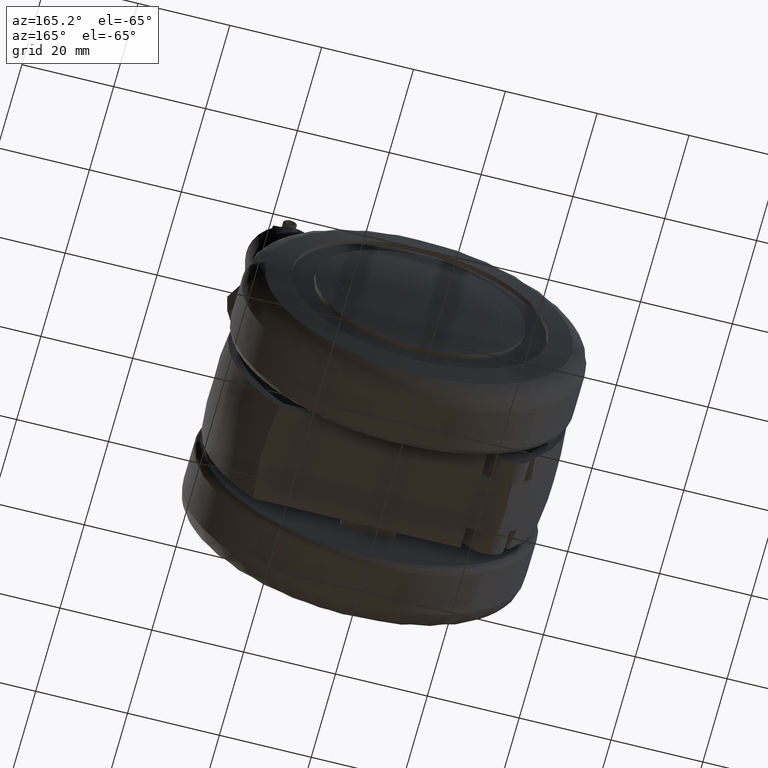
[diagram: clean part render]
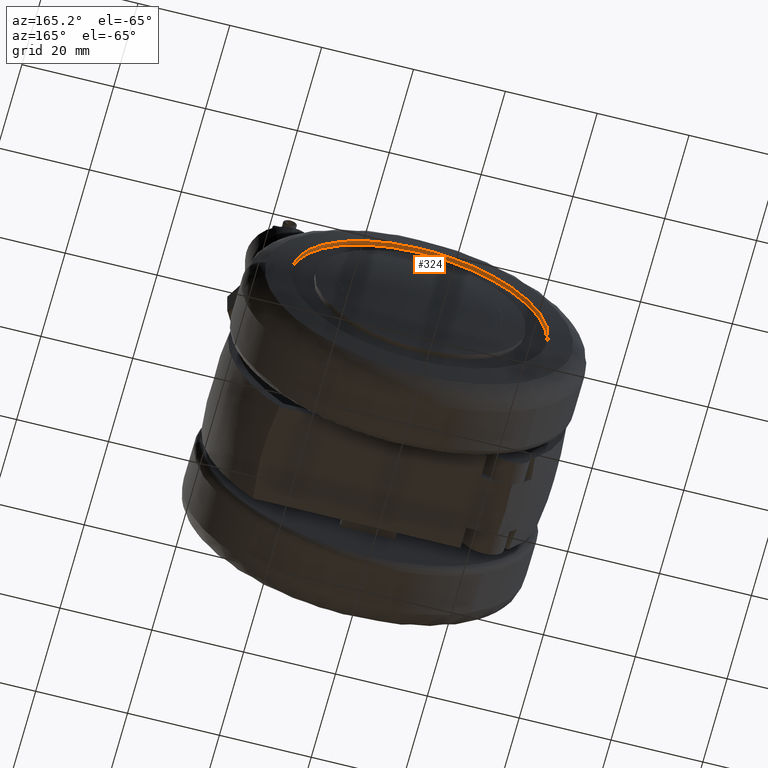
[diagram: same view with one face highlighted and labeled with its STEP entity id]
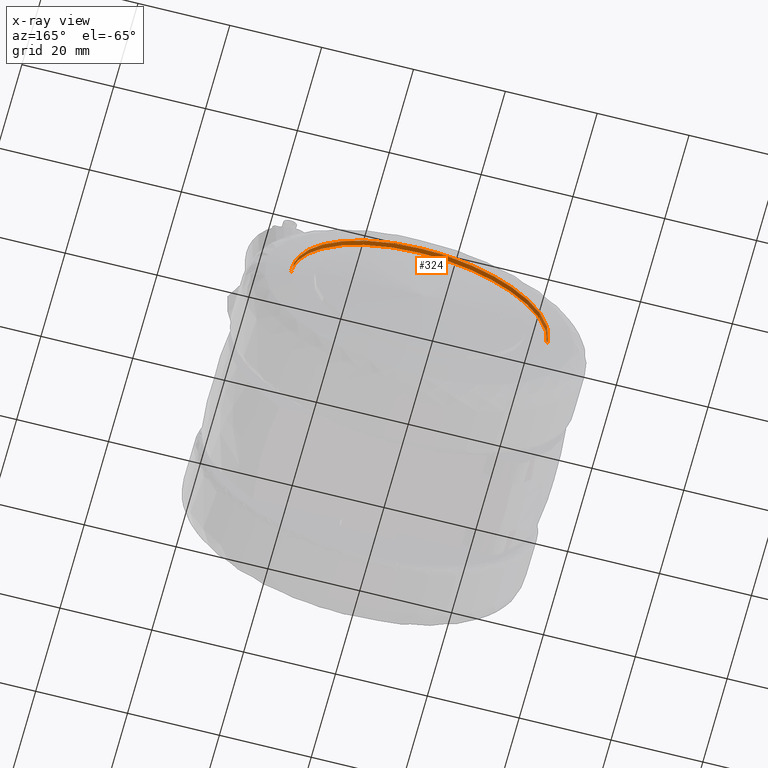
[diagram: x-ray of the same camera — body ghosted, the highlighted face saturated]
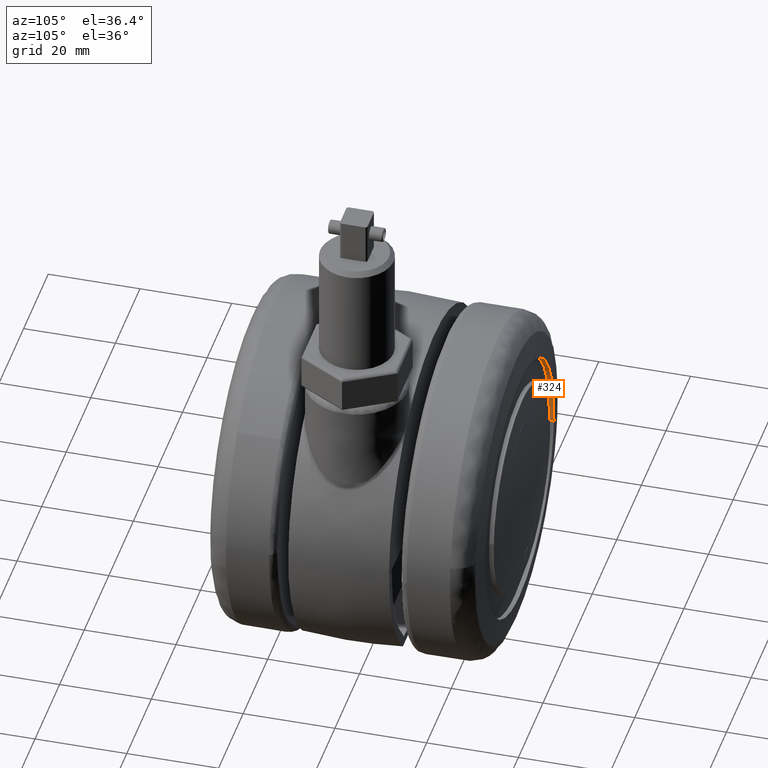
[diagram: same view with one face highlighted and labeled with its STEP entity id]
A machine part, auxiliary view. The second image highlights one B-rep face of the part: STEP entity #324.
The next image is the same camera in x-ray: the body ghosted, the highlighted face saturated — about 0% of this face is hidden behind the body in this view.
A second angle (auxiliary view) of the same face is appended — the face is thin or edge-on in the first view.
In plain terms, the highlighted face is a freeform B-spline surface patch.
Its self-contained STEP definition (entity closure, byte-faithful):
#226=CARTESIAN_POINT('',(27.913685344527568,29.579578599639131,2.196854680379675));
#227=CARTESIAN_POINT('',(25.716830664147892,29.579578599639127,30.110540024907248));
#228=CARTESIAN_POINT('',(-2.196854680379675,29.579578599639120,27.913685344527568));
#229=CARTESIAN_POINT('',(-30.110540024907248,29.579578599639127,25.716830664147892));
#230=CARTESIAN_POINT('',(-27.913685344527568,29.579578599639131,-2.196854680379675));
#231=CARTESIAN_POINT('',(27.913685344527568,28.522274459012390,2.196854680379675));
#232=CARTESIAN_POINT('',(25.716830664147892,28.522274459012380,30.110540024907248));
#233=CARTESIAN_POINT('',(-2.196854680379675,28.522274459012380,27.913685344527568));
#234=CARTESIAN_POINT('',(-30.110540024907248,28.522274459012380,25.716830664147892));
#235=CARTESIAN_POINT('',(-27.913685344527568,28.522274459012390,-2.196854680379675));
#243=(BOUNDED_SURFACE()B_SPLINE_SURFACE(2,1,((#226,#231),(#227,#232),(#228,#233),(#229,#234),(#230,#235)),.UNSPECIFIED.,.F.,.F.,.U.)B_SPLINE_SURFACE_WITH_KNOTS((3,2,3),(2,2),(0.0,46.391918985786631,92.783837971573263),(0.0,1.0),.UNSPECIFIED.)GEOMETRIC_REPRESENTATION_ITEM()RATIONAL_B_SPLINE_SURFACE(((1.0,1.0),(0.707106781186548,0.707106781186548),(1.0,1.0),(0.707106781186548,0.707106781186548),(1.0,1.0)))REPRESENTATION_ITEM('')SURFACE());
#244=CARTESIAN_POINT('',(0.0,29.554419667084051,28.000000000000011));
#245=VERTEX_POINT('',#244);
#246=CARTESIAN_POINT('',(27.913686462384501,29.554419667082389,2.196840476568322));
#247=VERTEX_POINT('',#246);
#248=CARTESIAN_POINT('',(0.0,29.554419667084051,28.000000000000011));
#249=CARTESIAN_POINT('',(25.882946977626393,29.554419667084062,28.000000000000014));
#250=CARTESIAN_POINT('',(27.913686462384497,29.554419667082389,2.196840476568322));
#258=(BOUNDED_CURVE()B_SPLINE_CURVE(2,(#248,#249,#250),.UNSPECIFIED.,.F.,.U.)B_SPLINE_CURVE_WITH_KNOTS((3,3),(0.0,0.236331387861709),.UNSPECIFIED.)CURVE()GEOMETRIC_REPRESENTATION_ITEM()RATIONAL_B_SPLINE_CURVE((1.0,0.723120556410134,0.969723538212035))REPRESENTATION_ITEM(''));
#259=EDGE_CURVE('',#245,#247,#258,.T.);
#260=ORIENTED_EDGE('',*,*,#259,.T.);
#261=CARTESIAN_POINT('',(27.913686448932051,28.548062364881350,2.196840647500092));
#262=VERTEX_POINT('',#261);
#263=CARTESIAN_POINT('',(27.913686462384501,29.554419667082389,2.196840476568322));
#264=CARTESIAN_POINT('',(27.913686448932051,28.548062364881350,2.196840647500092));
#265=QUASI_UNIFORM_CURVE('',1,(#263,#264),.UNSPECIFIED.,.F.,.U.);
#266=EDGE_CURVE('',#247,#262,#265,.T.);
#267=ORIENTED_EDGE('',*,*,#266,.T.);
#268=CARTESIAN_POINT('',(0.0,28.548062364881350,28.000000000000011));
#269=VERTEX_POINT('',#268);
#270=CARTESIAN_POINT('',(0.0,28.548062364881350,28.000000000000011));
#271=CARTESIAN_POINT('',(25.882946818639937,28.548062364881350,28.000000000000021));
#272=CARTESIAN_POINT('',(27.913686448932054,28.548062364881353,2.196840647500091));
#280=(BOUNDED_CURVE()B_SPLINE_CURVE(2,(#270,#271,#272),.UNSPECIFIED.,.F.,.U.)B_SPLINE_CURVE_WITH_KNOTS((3,3),(0.0,0.236331386811977),.UNSPECIFIED.)CURVE()GEOMETRIC_REPRESENTATION_ITEM()RATIONAL_B_SPLINE_CURVE((1.0,0.723120557639972,0.969723536021322))REPRESENTATION_ITEM(''));
#281=EDGE_CURVE('',#269,#262,#280,.T.);
#282=ORIENTED_EDGE('',*,*,#281,.F.);
#283=CARTESIAN_POINT('',(-27.913686448932051,28.548062364881350,-2.196840647500101));
#284=VERTEX_POINT('',#283);
#285=CARTESIAN_POINT('',(-27.913686448932054,28.548062364881346,-2.196840647500101));
#286=CARTESIAN_POINT('',(-27.999999999999993,28.548062364881346,-1.100115947214234));
#287=CARTESIAN_POINT('',(-28.0,28.548062364881350,1.048804E-014));
#288=CARTESIAN_POINT('',(-28.000000000000004,28.548062364881353,28.000000000000018));
#289=CARTESIAN_POINT('',(0.0,28.548062364881350,28.000000000000011));
#297=(BOUNDED_CURVE()B_SPLINE_CURVE(2,(#285,#286,#287,#288,#289),.UNSPECIFIED.,.F.,.U.)B_SPLINE_CURVE_WITH_KNOTS((3,2,3),(0.736331386811977,0.750000000000000,1.0),.UNSPECIFIED.)CURVE()GEOMETRIC_REPRESENTATION_ITEM()RATIONAL_B_SPLINE_CURVE((0.969723536021322,0.983986223546576,1.0,0.707106781186547,1.0))REPRESENTATION_ITEM(''));
#298=EDGE_CURVE('',#284,#269,#297,.T.);
#299=ORIENTED_EDGE('',*,*,#298,.F.);
#300=CARTESIAN_POINT('',(-27.913686462384501,29.554419667082389,-2.196840476568318));
#301=VERTEX_POINT('',#300);
#302=CARTESIAN_POINT('',(-27.913686462384501,29.554419667082389,-2.196840476568318));
#303=CARTESIAN_POINT('',(-27.913686448932051,28.548062364881350,-2.196840647500101));
#304=QUASI_UNIFORM_CURVE('',1,(#302,#303),.UNSPECIFIED.,.F.,.U.);
#305=EDGE_CURVE('',#301,#284,#304,.T.);
#306=ORIENTED_EDGE('',*,*,#305,.F.);
#307=CARTESIAN_POINT('',(-27.913686462384504,29.554419667082385,-2.196840476568318));
#308=CARTESIAN_POINT('',(-28.0,29.554419667084048,-1.100115861351730));
#309=CARTESIAN_POINT('',(-28.0,29.554419667084051,1.085776E-014));
#310=CARTESIAN_POINT('',(-28.000000000000004,29.554419667084055,28.000000000000018));
#311=CARTESIAN_POINT('',(0.0,29.554419667084051,28.000000000000011));
#319=(BOUNDED_CURVE()B_SPLINE_CURVE(2,(#307,#308,#309,#310,#311),.UNSPECIFIED.,.F.,.U.)B_SPLINE_CURVE_WITH_KNOTS((3,2,3),(0.736331387861709,0.750000000000000,1.0),.UNSPECIFIED.)CURVE()GEOMETRIC_REPRESENTATION_ITEM()RATIONAL_B_SPLINE_CURVE((0.969723538212035,0.983986224776414,1.0,0.707106781186547,1.0))REPRESENTATION_ITEM(''));
#320=EDGE_CURVE('',#301,#245,#319,.T.);
#321=ORIENTED_EDGE('',*,*,#320,.T.);
#322=EDGE_LOOP('',(#260,#267,#282,#299,#306,#321));
#323=FACE_OUTER_BOUND('',#322,.T.);
#324=ADVANCED_FACE('',(#323),#243,.F.);